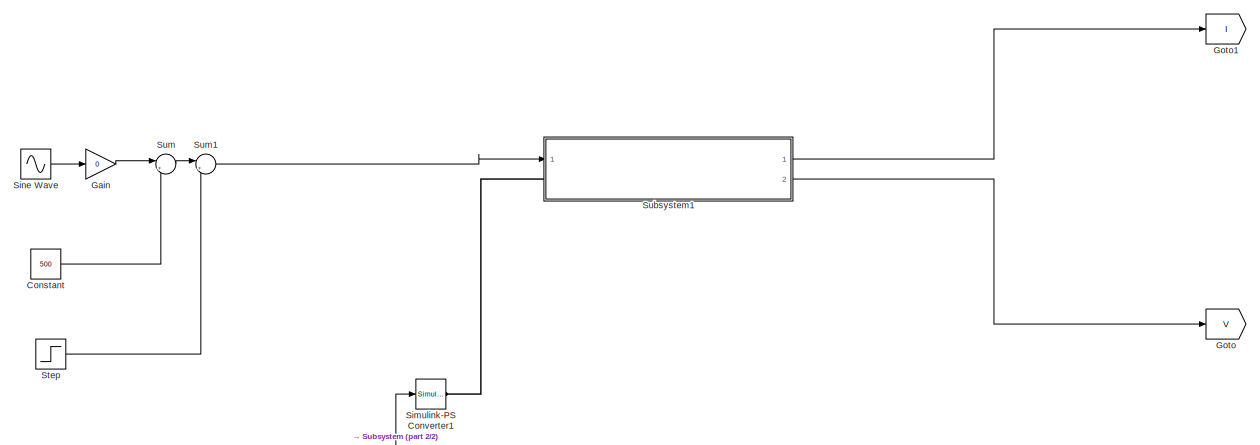
[diagram: root canvas - part 1/2, top center region]
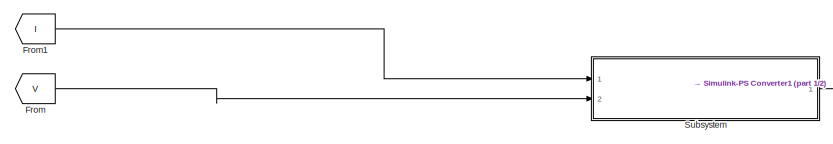
[diagram: root canvas - part 2/2, bottom left region]
MODEL slx_8e7ab636ee97
KIND model
CONFIG AbsTol = auto
CONFIG EnableMultiTasking = off
CONFIG FixedStep = 0.001
CONFIG MaxStep = auto
CONFIG MinStep = auto
CONFIG RelTol = 1e-3
CONFIG SampleTimeConstraint = Unconstrained
CONFIG Solver = FixedStepAuto
CONFIG SolverName = FixedStepAuto
CONFIG StartTime = 0.0
CONFIG StopTime = 10
BLOCK [Constant] Constant
  Value = 500
BLOCK [From] From
  GotoTag = V
BLOCK [From] From1
  GotoTag = I
BLOCK [Gain] Gain
  Gain = 0
  OutDataTypeStr = Inherit: Inherit via internal rule
  ParamDataTypeStr = Inherit: Inherit via internal rule
  SaturateOnIntegerOverflow = off
BLOCK [Goto] Goto
  GotoTag = V
BLOCK [Goto] Goto1
  GotoTag = I
BLOCK [Reference] Simulink-PS Converter1  REF=nesl_utility/Simulink-PS
Converter
  Ports = [1, 0, 0, 0, 0, 0, 1]
  SourceBlock = nesl_utility/Simulink-PS\nConverter
  SourceProductBaseCode = SS
  SourceProductName = Simscape
  SourceType = Simulink-PS\nConverter
BLOCK [Sin] Sine Wave
  Amplitude = 200
  Bias = 200
  Frequency = 10
  Ports = [0, 1]
  SampleTime = 0
BLOCK [Step] Step
  After = 500
  SampleTime = 0
  Time = 5
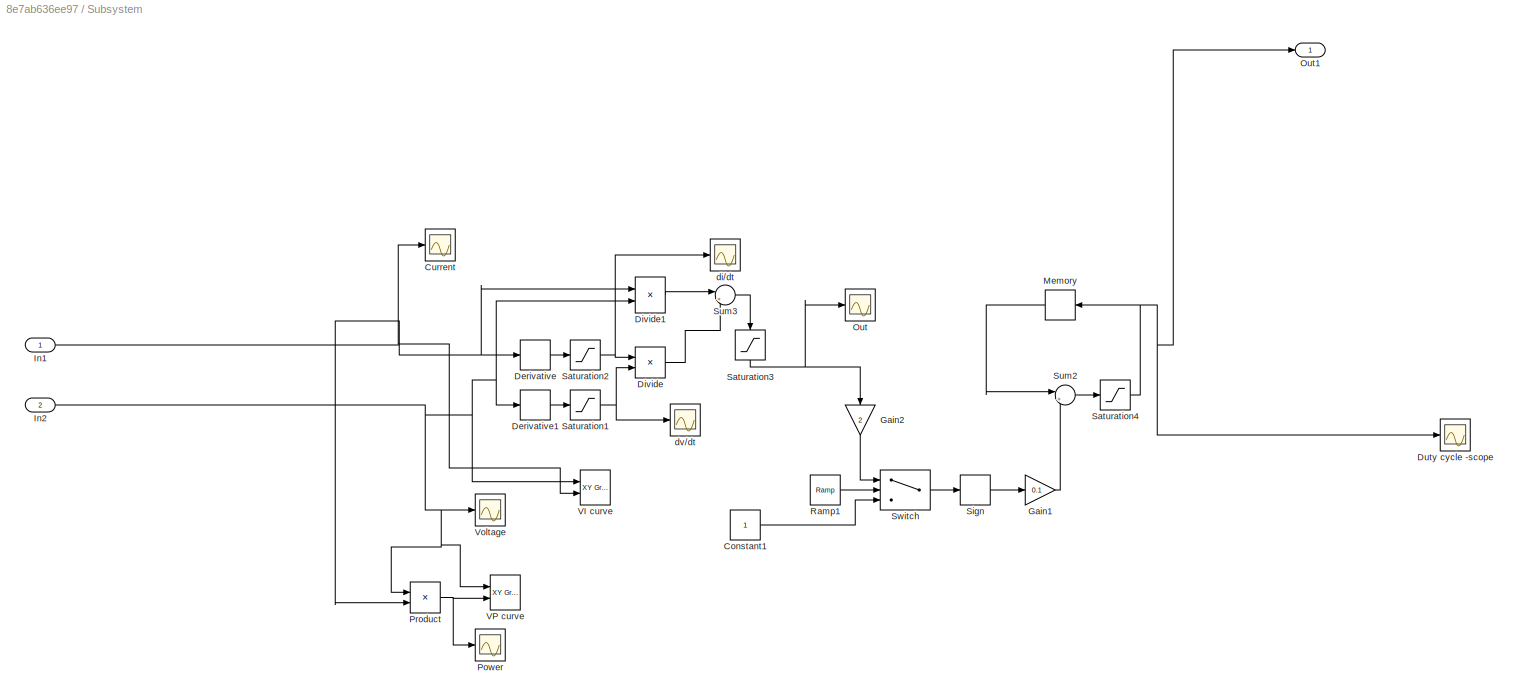
BLOCK [SubSystem] Subsystem
  Ports = [2, 1]
  RequestExecContextInheritance = off
  Variant = off
BLOCK [Constant] Subsystem/Constant1
BLOCK [Scope] Subsystem/Current
  NumInputPorts = 1
  Ports = [1]
  ScopeSpecificationString = Simulink.scopes.TimeScopeBlockCfg('CurrentConfiguration', extmgr.ConfigurationSet(extmgr.Configuration('Core','General UI',true),extmgr.Configuration('Core','Source UI',true),extmgr.Configuration('Sources','WiredSimulink',true,'DataLoggingVariableName','ScopeData1'),extmgr.Configuration('Visuals','Time Domain',true,'SerializedDisplays',{struct('MinYLimReal','2.45414','MaxYLimReal','6.99236','YLabe...<+1429ch>
BLOCK [Derivative] Subsystem/Derivative
  CoefficientInTFapproximation = 300
BLOCK [Derivative] Subsystem/Derivative1
  CoefficientInTFapproximation = 300
BLOCK [Product] Subsystem/Divide
  InputSameDT = off
  Inputs = */
  OutDataTypeStr = Inherit: Inherit via internal rule
  Ports = [2, 1]
  RndMeth = Floor
  SaturateOnIntegerOverflow = off
BLOCK [Product] Subsystem/Divide1
  InputSameDT = off
  Inputs = */
  OutDataTypeStr = Inherit: Inherit via internal rule
  Ports = [2, 1]
  RndMeth = Floor
  SaturateOnIntegerOverflow = off
BLOCK [Scope] Subsystem/Duty cycle -scope
  NumInputPorts = 1
  Ports = [1]
  ScopeSpecificationString = Simulink.scopes.TimeScopeBlockCfg('CurrentConfiguration', extmgr.ConfigurationSet(extmgr.Configuration('Core','General UI',true),extmgr.Configuration('Core','Source UI',true),extmgr.Configuration('Sources','WiredSimulink',true,'DataLoggingVariableName','ScopeData2'),extmgr.Configuration('Visuals','Time Domain',true,'SerializedDisplays',{struct('MinYLimReal','-21.625','MaxYLimReal','224.625','YLabe...<+1465ch>
BLOCK [Gain] Subsystem/Gain1
  Gain = 0.1
  OutDataTypeStr = Inherit: Inherit via internal rule
  ParamDataTypeStr = Inherit: Inherit via internal rule
  SaturateOnIntegerOverflow = off
BLOCK [Gain] Subsystem/Gain2
  Gain = 2
  OutDataTypeStr = Inherit: Inherit via internal rule
  ParamDataTypeStr = Inherit: Inherit via internal rule
  SaturateOnIntegerOverflow = off
BLOCK [Inport] Subsystem/In1
  IconDisplay = Port number
BLOCK [Inport] Subsystem/In2
  IconDisplay = Port number
  Port = 2
BLOCK [Memory] Subsystem/Memory
  X0 = 2
BLOCK [Scope] Subsystem/Out
  NumInputPorts = 1
  Ports = [1]
  ScopeSpecificationString = Simulink.scopes.TimeScopeBlockCfg('CurrentConfiguration', extmgr.ConfigurationSet(extmgr.Configuration('Core','General UI',true),extmgr.Configuration('Core','Source UI',true),extmgr.Configuration('Sources','WiredSimulink',true,'DataLoggingVariableName','ScopeData3'),extmgr.Configuration('Visuals','Time Domain',true,'SerializedDisplays',{struct('MinYLimReal','-754.58072','MaxYLimReal','104.81335','...<+1481ch>
BLOCK [Outport] Subsystem/Out1
  IconDisplay = Port number
BLOCK [Scope] Subsystem/Power
  NumInputPorts = 1
  Ports = [1]
  ScopeSpecificationString = Simulink.scopes.TimeScopeBlockCfg('CurrentConfiguration', extmgr.ConfigurationSet(extmgr.Configuration('Core','General UI',true),extmgr.Configuration('Core','Source UI',true),extmgr.Configuration('Sources','WiredSimulink',true,'DataLoggingVariableName','ScopeData4'),extmgr.Configuration('Visuals','Time Domain',true,'SerializedDisplays',{struct('MinYLimReal','-18807.58753','MaxYLimReal','169268.287...<+1493ch>
BLOCK [Product] Subsystem/Product
  InputSameDT = off
  OutDataTypeStr = Inherit: Inherit via internal rule
  Ports = [2, 1]
  RndMeth = Floor
  SaturateOnIntegerOverflow = off
BLOCK [Reference] Subsystem/Ramp1  REF=simulink/Sources/Ramp
  Ports = [0, 1]
  SourceBlock = simulink/Sources/Ramp
  SourceProductBaseCode = SL
  SourceProductName = Simulink
  SourceType = Ramp
BLOCK [Saturate] Subsystem/Saturation1
  InputPortMap = u0
  LowerLimit = -200
  Ports = [1, 1]
  UpperLimit = 200
BLOCK [Saturate] Subsystem/Saturation2
  InputPortMap = u0
  LowerLimit = -200
  Ports = [1, 1]
  UpperLimit = 200
BLOCK [Saturate] Subsystem/Saturation3
  InputPortMap = u0
  LowerLimit = -200
  Ports = [1, 1]
  UpperLimit = 200
BLOCK [Saturate] Subsystem/Saturation4
  InputPortMap = u0
  LowerLimit = 0
  Ports = [1, 1]
  UpperLimit = 200
BLOCK [Signum] Subsystem/Sign
BLOCK [Sum] Subsystem/Sum2
  IconShape = round
  InputSameDT = off
  Inputs = |++
  OutDataTypeStr = Inherit: Inherit via internal rule
  Ports = [2, 1]
  SaturateOnIntegerOverflow = off
BLOCK [Sum] Subsystem/Sum3
  IconShape = round
  InputSameDT = off
  Inputs = |++
  OutDataTypeStr = Inherit: Inherit via internal rule
  Ports = [2, 1]
  SaturateOnIntegerOverflow = off
BLOCK [Switch] Subsystem/Switch
  Criteria = u2 > Threshold
  InputSameDT = off
  SaturateOnIntegerOverflow = off
  Threshold = 1
BLOCK [Reference] Subsystem/VI curve  REF=simulink/Sinks/XY Graph
  Ports = [2]
  SourceBlock = simulink/Sinks/XY Graph
  SourceProductBaseCode = SL
  SourceProductName = Simulink
  SourceType = XY scope.
BLOCK [Reference] Subsystem/VP curve  REF=simulink/Sinks/XY Graph
  Ports = [2]
  SourceBlock = simulink/Sinks/XY Graph
  SourceProductBaseCode = SL
  SourceProductName = Simulink
  SourceType = XY scope.
BLOCK [Scope] Subsystem/Voltage
  NumInputPorts = 1
  Ports = [1]
  ScopeSpecificationString = Simulink.scopes.TimeScopeBlockCfg('CurrentConfiguration', extmgr.ConfigurationSet(extmgr.Configuration('Core','General UI',true),extmgr.Configuration('Core','Source UI',true),extmgr.Configuration('Sources','WiredSimulink',true,'DataLoggingVariableName','ScopeData5'),extmgr.Configuration('Visuals','Time Domain',true,'SerializedDisplays',{struct('MinYLimReal','-10.17481','MaxYLimReal','91.57333','YL...<+1463ch>
BLOCK [Scope] Subsystem/di//dt
  NumInputPorts = 1
  Ports = [1]
  ScopeSpecificationString = Simulink.scopes.TimeScopeBlockCfg('CurrentConfiguration', extmgr.ConfigurationSet(extmgr.Configuration('Core','General UI',true),extmgr.Configuration('Core','Source UI',true),extmgr.Configuration('Sources','WiredSimulink',true,'DataLoggingVariableName','ScopeData6'),extmgr.Configuration('Visuals','Time Domain',true),extmgr.Configuration('Tools','Plot Navigation',true),extmgr.Configuration('Tools',...<+40ch>
BLOCK [Scope] Subsystem/dv//dt
  NumInputPorts = 1
  Ports = [1]
  ScopeSpecificationString = Simulink.scopes.TimeScopeBlockCfg('CurrentConfiguration', extmgr.ConfigurationSet(extmgr.Configuration('Core','General UI',true),extmgr.Configuration('Core','Source UI',true),extmgr.Configuration('Sources','WiredSimulink',true,'DataLoggingVariableName','ScopeData7'),extmgr.Configuration('Visuals','Time Domain',true,'SerializedDisplays',{struct('MinYLimReal','-297.70282','MaxYLimReal','68.60075','Y...<+1401ch>
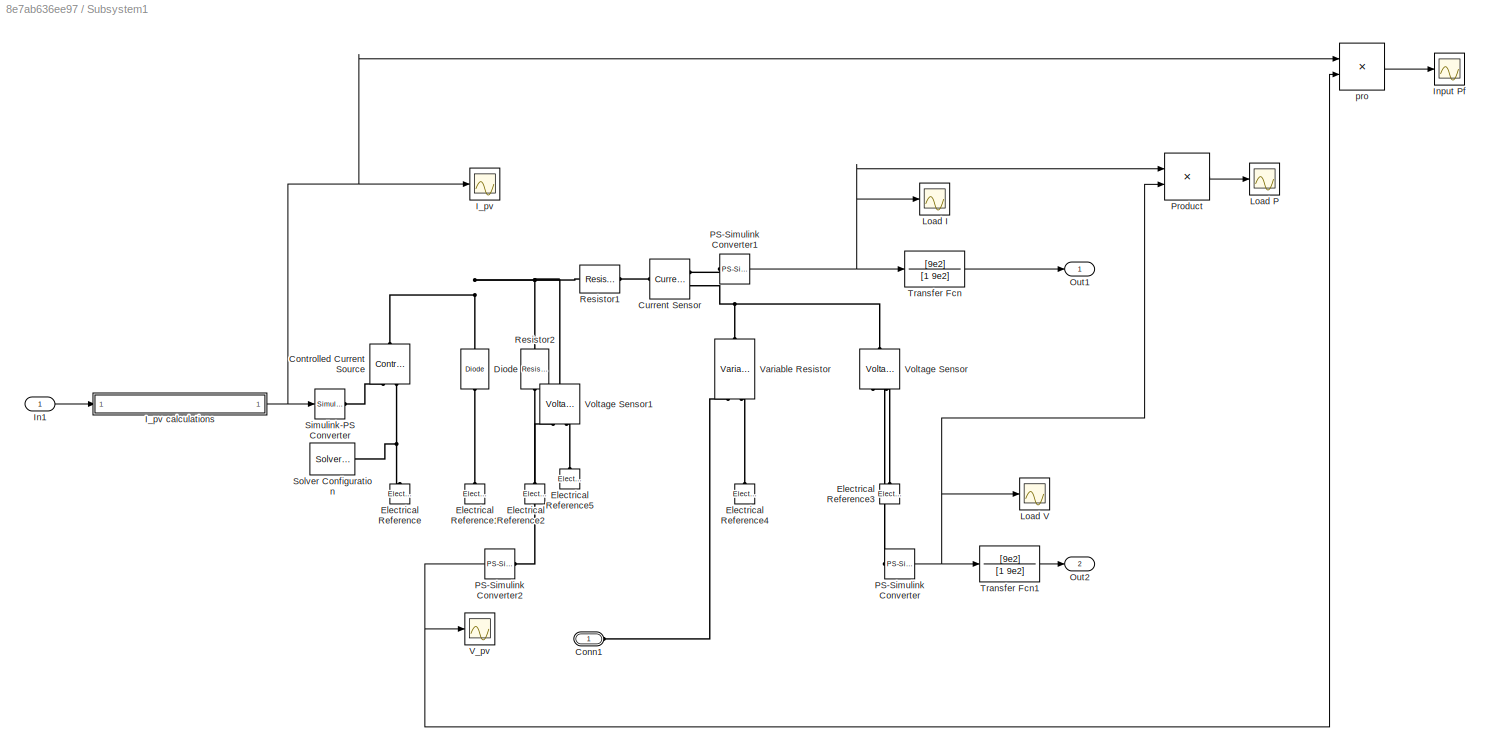
BLOCK [SubSystem] Subsystem1
  Ports = [1, 2, 0, 0, 0, 1]
  RequestExecContextInheritance = off
  Variant = off
BLOCK [PMIOPort] Subsystem1/Conn1
  Port = 1
  Side = Left
BLOCK [Reference] Subsystem1/Controlled Current Source  REF=fl_lib/Electrical/Electrical Sources/Controlled Current
Source
  Ports = [0, 0, 0, 0, 0, 1, 2]
  SourceBlock = fl_lib/Electrical/Electrical Sources/Controlled Current\nSource
  SourceProductBaseCode = SS
  SourceProductName = Simscape
  SourceType = Controlled Current\nSource
BLOCK [Reference] Subsystem1/Current Sensor  REF=fl_lib/Electrical/Electrical Sensors/Current Sensor
  Ports = [0, 0, 0, 0, 0, 1, 2]
  SourceBlock = fl_lib/Electrical/Electrical Sensors/Current Sensor
  SourceProductBaseCode = SS
  SourceProductName = Simscape
  SourceType = Current Sensor
BLOCK [Reference] Subsystem1/Diode  REF=elec_lib/Semiconductor
Devices/Diode
  Ports = [0, 0, 0, 0, 0, 1, 1]
  SourceBlock = elec_lib/Semiconductor\nDevices/Diode
  SourceProductBaseCode = SN
  SourceProductName = Simscape Electronics
  SourceType = Diode
BLOCK [Reference] Subsystem1/Electrical Reference  REF=fl_lib/Electrical/Electrical Elements/Electrical Reference
  Ports = [0, 0, 0, 0, 0, 1]
  SourceBlock = fl_lib/Electrical/Electrical Elements/Electrical Reference
  SourceProductBaseCode = SS
  SourceProductName = Simscape
  SourceType = Electrical Reference
BLOCK [Reference] Subsystem1/Electrical Reference1  REF=fl_lib/Electrical/Electrical Elements/Electrical Reference
  Ports = [0, 0, 0, 0, 0, 1]
  SourceBlock = fl_lib/Electrical/Electrical Elements/Electrical Reference
  SourceProductBaseCode = SS
  SourceProductName = Simscape
  SourceType = Electrical Reference
BLOCK [Reference] Subsystem1/Electrical Reference2  REF=fl_lib/Electrical/Electrical Elements/Electrical Reference
  Ports = [0, 0, 0, 0, 0, 1]
  SourceBlock = fl_lib/Electrical/Electrical Elements/Electrical Reference
  SourceProductBaseCode = SS
  SourceProductName = Simscape
  SourceType = Electrical Reference
BLOCK [Reference] Subsystem1/Electrical Reference3  REF=fl_lib/Electrical/Electrical Elements/Electrical Reference
  Ports = [0, 0, 0, 0, 0, 1]
  SourceBlock = fl_lib/Electrical/Electrical Elements/Electrical Reference
  SourceProductBaseCode = SS
  SourceProductName = Simscape
  SourceType = Electrical Reference
BLOCK [Reference] Subsystem1/Electrical Reference4  REF=fl_lib/Electrical/Electrical Elements/Electrical Reference
  Ports = [0, 0, 0, 0, 0, 1]
  SourceBlock = fl_lib/Electrical/Electrical Elements/Electrical Reference
  SourceProductBaseCode = SS
  SourceProductName = Simscape
  SourceType = Electrical Reference
BLOCK [Reference] Subsystem1/Electrical Reference5  REF=fl_lib/Electrical/Electrical Elements/Electrical Reference
  Ports = [0, 0, 0, 0, 0, 1]
  SourceBlock = fl_lib/Electrical/Electrical Elements/Electrical Reference
  SourceProductBaseCode = SS
  SourceProductName = Simscape
  SourceType = Electrical Reference
BLOCK [Scope] Subsystem1/I_pv
  NumInputPorts = 1
  Ports = [1]
  ScopeSpecificationString = Simulink.scopes.TimeScopeBlockCfg('CurrentConfiguration', extmgr.ConfigurationSet(extmgr.Configuration('Core','General UI',true),extmgr.Configuration('Core','Source UI',true),extmgr.Configuration('Sources','WiredSimulink',true,'DataLoggingVariableName','ScopeData9'),extmgr.Configuration('Visuals','Time Domain',true,'SerializedDisplays',{struct('MinYLimReal','2.86672','MaxYLimReal','6.96203','YLabe...<+1374ch>
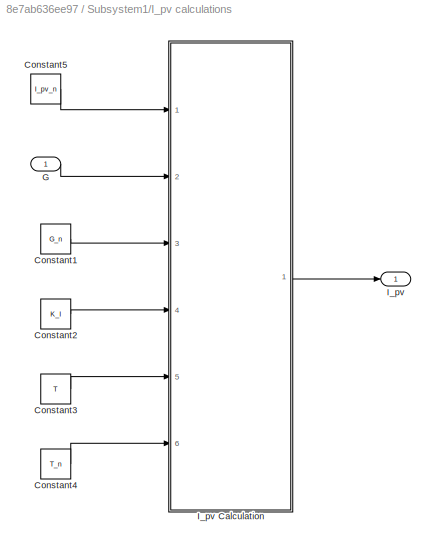
BLOCK [SubSystem] Subsystem1/I_pv calculations
  Ports = [1, 1]
  RequestExecContextInheritance = off
  Variant = off
BLOCK [Constant] Subsystem1/I_pv calculations/Constant1
  Value = G_n
BLOCK [Constant] Subsystem1/I_pv calculations/Constant2
  Value = K_I
BLOCK [Constant] Subsystem1/I_pv calculations/Constant3
  Value = T
BLOCK [Constant] Subsystem1/I_pv calculations/Constant4
  Value = T_n
BLOCK [Constant] Subsystem1/I_pv calculations/Constant5
  Value = I_pv_n
BLOCK [Inport] Subsystem1/I_pv calculations/G
  IconDisplay = Port number
BLOCK [Outport] Subsystem1/I_pv calculations/I_pv
  IconDisplay = Port number
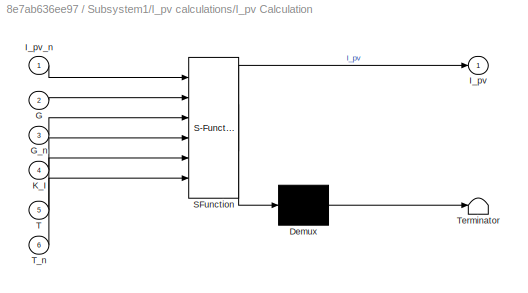
BLOCK [SubSystem] Subsystem1/I_pv calculations/I_pv Calculation
  ErrorFcn = Stateflow.Translate.translate
  PermitHierarchicalResolution = ExplicitOnly
  Ports = [6, 1]
  RequestExecContextInheritance = off
  SFBlockType = MATLAB Function
  TreatAsAtomicUnit = on
  Variant = off
BLOCK [Demux] Subsystem1/I_pv calculations/I_pv Calculation/ Demux 
  Outputs = 1
  Ports = [1, 1]
BLOCK [S-Function] Subsystem1/I_pv calculations/I_pv Calculation/ SFunction 
  EnableBusSupport = on
  FunctionName = sf_sfun
  PortCounts = [6 2]
  Ports = [6, 2]
  SFcnIsStateOwnerBlock = off
  SFunctionDeploymentMode = off
  Tag = Stateflow S-Function GSK_PVModel_07 1
BLOCK [Terminator] Subsystem1/I_pv calculations/I_pv Calculation/ Terminator 
BLOCK [Inport] Subsystem1/I_pv calculations/I_pv Calculation/G
  IconDisplay = Port number
  Port = 2
BLOCK [Inport] Subsystem1/I_pv calculations/I_pv Calculation/G_n
  IconDisplay = Port number
  Port = 3
BLOCK [Outport] Subsystem1/I_pv calculations/I_pv Calculation/I_pv
  IconDisplay = Port number
BLOCK [Inport] Subsystem1/I_pv calculations/I_pv Calculation/I_pv_n
  IconDisplay = Port number
BLOCK [Inport] Subsystem1/I_pv calculations/I_pv Calculation/K_I
  IconDisplay = Port number
  Port = 4
BLOCK [Inport] Subsystem1/I_pv calculations/I_pv Calculation/T
  IconDisplay = Port number
  Port = 5
BLOCK [Inport] Subsystem1/I_pv calculations/I_pv Calculation/T_n
  IconDisplay = Port number
  Port = 6
BLOCK [Inport] Subsystem1/In1
  IconDisplay = Port number
BLOCK [Scope] Subsystem1/Input Pf
  NumInputPorts = 1
  Ports = [1]
  ScopeSpecificationString = Simulink.scopes.TimeScopeBlockCfg('CurrentConfiguration', extmgr.ConfigurationSet(extmgr.Configuration('Core','General UI',true),extmgr.Configuration('Core','Source UI',true),extmgr.Configuration('Sources','WiredSimulink',true,'DataLoggingVariableName','ScopeData12'),extmgr.Configuration('Visuals','Time Domain',true,'SerializedDisplays',{struct('MinYLimReal','-11879.0653','MaxYLimReal','2322.9369'...<+1440ch>
BLOCK [Scope] Subsystem1/Load I
  NumInputPorts = 1
  Ports = [1]
  ScopeSpecificationString = Simulink.scopes.TimeScopeBlockCfg('CurrentConfiguration', extmgr.ConfigurationSet(extmgr.Configuration('Core','General UI',true),extmgr.Configuration('Core','Source UI',true),extmgr.Configuration('Sources','WiredSimulink',true),extmgr.Configuration('Visuals','Time Domain',true),extmgr.Configuration('Tools','Plot Navigation',true),extmgr.Configuration('Tools','Measurements',true)),'Version','2017a'...<+1ch>
BLOCK [Scope] Subsystem1/Load P
  NumInputPorts = 1
  Ports = [1]
  ScopeSpecificationString = Simulink.scopes.TimeScopeBlockCfg('CurrentConfiguration', extmgr.ConfigurationSet(extmgr.Configuration('Core','General UI',true),extmgr.Configuration('Core','Source UI',true),extmgr.Configuration('Sources','WiredSimulink',true,'DataLoggingVariableName','ScopeData11'),extmgr.Configuration('Visuals','Time Domain',true,'SerializedDisplays',{struct('MinYLimReal','-14680.98431','MaxYLimReal','132344.27...<+1453ch>
BLOCK [Scope] Subsystem1/Load V
  NumInputPorts = 1
  Ports = [1]
  ScopeSpecificationString = Simulink.scopes.TimeScopeBlockCfg('CurrentConfiguration', extmgr.ConfigurationSet(extmgr.Configuration('Core','General UI',true),extmgr.Configuration('Core','Source UI',true),extmgr.Configuration('Sources','WiredSimulink',true,'DataLoggingVariableName','ScopeData8'),extmgr.Configuration('Visuals','Time Domain',true),extmgr.Configuration('Tools','Plot Navigation',true),extmgr.Configuration('Tools',...<+40ch>
BLOCK [Outport] Subsystem1/Out1
  IconDisplay = Port number
BLOCK [Outport] Subsystem1/Out2
  IconDisplay = Port number
  Port = 2
BLOCK [Reference] Subsystem1/PS-Simulink Converter  REF=nesl_utility/PS-Simulink
Converter
  Ports = [0, 1, 0, 0, 0, 1]
  SourceBlock = nesl_utility/PS-Simulink\nConverter
  SourceProductBaseCode = SS
  SourceProductName = Simscape
  SourceType = PS-Simulink\nConverter
BLOCK [Reference] Subsystem1/PS-Simulink Converter1  REF=nesl_utility/PS-Simulink
Converter
  Ports = [0, 1, 0, 0, 0, 1]
  SourceBlock = nesl_utility/PS-Simulink\nConverter
  SourceProductBaseCode = SS
  SourceProductName = Simscape
  SourceType = PS-Simulink\nConverter
BLOCK [Reference] Subsystem1/PS-Simulink Converter2  REF=nesl_utility/PS-Simulink
Converter
  Ports = [0, 1, 0, 0, 0, 1]
  SourceBlock = nesl_utility/PS-Simulink\nConverter
  SourceProductBaseCode = SS
  SourceProductName = Simscape
  SourceType = PS-Simulink\nConverter
BLOCK [Product] Subsystem1/Product
  InputSameDT = off
  OutDataTypeStr = Inherit: Inherit via internal rule
  Ports = [2, 1]
  RndMeth = Floor
  SaturateOnIntegerOverflow = off
BLOCK [Reference] Subsystem1/Resistor1  REF=fl_lib/Electrical/Electrical Elements/Resistor
  Ports = [0, 0, 0, 0, 0, 1, 1]
  SourceBlock = fl_lib/Electrical/Electrical Elements/Resistor
  SourceProductBaseCode = SS
  SourceProductName = Simscape
  SourceType = Resistor
BLOCK [Reference] Subsystem1/Resistor2  REF=fl_lib/Electrical/Electrical Elements/Resistor
  Ports = [0, 0, 0, 0, 0, 1, 1]
  SourceBlock = fl_lib/Electrical/Electrical Elements/Resistor
  SourceProductBaseCode = SS
  SourceProductName = Simscape
  SourceType = Resistor
BLOCK [Reference] Subsystem1/Simulink-PS Converter  REF=nesl_utility/Simulink-PS
Converter
  Ports = [1, 0, 0, 0, 0, 0, 1]
  SourceBlock = nesl_utility/Simulink-PS\nConverter
  SourceProductBaseCode = SS
  SourceProductName = Simscape
  SourceType = Simulink-PS\nConverter
BLOCK [Reference] Subsystem1/Solver Configuration  REF=nesl_utility/Solver
Configuration
  Ports = [0, 0, 0, 0, 0, 0, 1]
  SourceBlock = nesl_utility/Solver\nConfiguration
  SourceProductBaseCode = SS
  SourceProductName = Simscape
  SourceType = Solver\nConfiguration
BLOCK [TransferFcn] Subsystem1/Transfer Fcn
  Denominator = [1 9e2]
  Numerator = [9e2]
BLOCK [TransferFcn] Subsystem1/Transfer Fcn1
  Denominator = [1 9e2]
  Numerator = [9e2]
BLOCK [Scope] Subsystem1/V_pv
  NumInputPorts = 1
  Ports = [1]
  ScopeSpecificationString = Simulink.scopes.TimeScopeBlockCfg('CurrentConfiguration', extmgr.ConfigurationSet(extmgr.Configuration('Core','General UI',true),extmgr.Configuration('Core','Source UI',true),extmgr.Configuration('Sources','WiredSimulink',true,'DataLoggingVariableName','ScopeData10'),extmgr.Configuration('Visuals','Time Domain',true),extmgr.Configuration('Tools','Plot Navigation',true),extmgr.Configuration('Tools'...<+59ch>
BLOCK [Reference] Subsystem1/Variable Resistor  REF=fl_lib/Electrical/Electrical Elements/Variable Resistor
  Ports = [0, 0, 0, 0, 0, 2, 1]
  SourceBlock = fl_lib/Electrical/Electrical Elements/Variable Resistor
  SourceProductBaseCode = SS
  SourceProductName = Simscape
  SourceType = Variable Resistor
BLOCK [Reference] Subsystem1/Voltage Sensor  REF=fl_lib/Electrical/Electrical Sensors/Voltage Sensor
  Ports = [0, 0, 0, 0, 0, 1, 2]
  SourceBlock = fl_lib/Electrical/Electrical Sensors/Voltage Sensor
  SourceProductBaseCode = SS
  SourceProductName = Simscape
  SourceType = Voltage Sensor
BLOCK [Reference] Subsystem1/Voltage Sensor1  REF=fl_lib/Electrical/Electrical Sensors/Voltage Sensor
  Ports = [0, 0, 0, 0, 0, 1, 2]
  SourceBlock = fl_lib/Electrical/Electrical Sensors/Voltage Sensor
  SourceProductBaseCode = SS
  SourceProductName = Simscape
  SourceType = Voltage Sensor
BLOCK [Product] Subsystem1/pro
  InputSameDT = off
  OutDataTypeStr = Inherit: Inherit via internal rule
  Ports = [2, 1]
  RndMeth = Floor
  SaturateOnIntegerOverflow = off
BLOCK [Sum] Sum
  IconShape = round
  InputSameDT = off
  Inputs = |++
  OutDataTypeStr = Inherit: Inherit via internal rule
  Ports = [2, 1]
  SaturateOnIntegerOverflow = off
BLOCK [Sum] Sum1
  IconShape = round
  InputSameDT = off
  Inputs = |++
  OutDataTypeStr = Inherit: Inherit via internal rule
  Ports = [2, 1]
  SaturateOnIntegerOverflow = off
LINE Constant:1 -> Sum:2
LINE From1:1 -> Subsystem:1
LINE From:1 -> Subsystem:2
LINE Gain:1 -> Sum:1
LINE Sine Wave:1 -> Gain:1
LINE Step:1 -> Sum1:2
LINE Subsystem/Constant1:1 -> Subsystem/Switch:3
LINE Subsystem/Derivative1:1 -> Subsystem/Saturation1:1
LINE Subsystem/Derivative:1 -> Subsystem/Saturation2:1
LINE Subsystem/Divide1:1 -> Subsystem/Sum3:1
LINE Subsystem/Divide:1 -> Subsystem/Sum3:2
LINE Subsystem/Gain1:1 -> Subsystem/Sum2:2
LINE Subsystem/Gain2:1 -> Subsystem/Switch:1
NET Subsystem/In1:1 -> Subsystem/Current:1, Subsystem/Derivative:1, Subsystem/Divide1:1, Subsystem/Product:2, Subsystem/VI curve:2
NET Subsystem/In2:1 -> Subsystem/Derivative1:1, Subsystem/Divide1:2, Subsystem/Product:1, Subsystem/VI curve:1, Subsystem/VP curve:1, Subsystem/Voltage:1
LINE Subsystem/Memory:1 -> Subsystem/Sum2:1
NET Subsystem/Product:1 -> Subsystem/Power:1, Subsystem/VP curve:2
LINE Subsystem/Ramp1:1 -> Subsystem/Switch:2
NET Subsystem/Saturation1:1 -> Subsystem/Divide:2, Subsystem/dv//dt:1
NET Subsystem/Saturation2:1 -> Subsystem/Divide:1, Subsystem/di//dt:1
NET Subsystem/Saturation3:1 -> Subsystem/Gain2:1, Subsystem/Out:1
NET Subsystem/Saturation4:1 -> Subsystem/Duty cycle -scope:1, Subsystem/Memory:1, Subsystem/Out1:1
LINE Subsystem/Sign:1 -> Subsystem/Gain1:1
LINE Subsystem/Sum2:1 -> Subsystem/Saturation4:1
LINE Subsystem/Sum3:1 -> Subsystem/Saturation3:1
LINE Subsystem/Switch:1 -> Subsystem/Sign:1
LINE Subsystem1/I_pv calculations/Constant1:1 -> Subsystem1/I_pv calculations/I_pv Calculation:3
LINE Subsystem1/I_pv calculations/Constant2:1 -> Subsystem1/I_pv calculations/I_pv Calculation:4
LINE Subsystem1/I_pv calculations/Constant3:1 -> Subsystem1/I_pv calculations/I_pv Calculation:5
LINE Subsystem1/I_pv calculations/Constant4:1 -> Subsystem1/I_pv calculations/I_pv Calculation:6
LINE Subsystem1/I_pv calculations/Constant5:1 -> Subsystem1/I_pv calculations/I_pv Calculation:1
LINE Subsystem1/I_pv calculations/G:1 -> Subsystem1/I_pv calculations/I_pv Calculation:2
LINE Subsystem1/I_pv calculations/I_pv Calculation:1 -> Subsystem1/I_pv calculations/I_pv:1
NET Subsystem1/I_pv calculations:1 -> Subsystem1/I_pv:1, Subsystem1/Simulink-PS Converter:1, Subsystem1/pro:1
LINE Subsystem1/In1:1 -> Subsystem1/I_pv calculations:1
NET Subsystem1/PS-Simulink Converter1:1 -> Subsystem1/Load I:1, Subsystem1/Product:1, Subsystem1/Transfer Fcn:1
NET Subsystem1/PS-Simulink Converter2:1 -> Subsystem1/V_pv:1, Subsystem1/pro:2
NET Subsystem1/PS-Simulink Converter:1 -> Subsystem1/Load V:1, Subsystem1/Product:2, Subsystem1/Transfer Fcn1:1
LINE Subsystem1/Product:1 -> Subsystem1/Load P:1
LINE Subsystem1/Transfer Fcn1:1 -> Subsystem1/Out2:1
LINE Subsystem1/Transfer Fcn:1 -> Subsystem1/Out1:1
LINE Subsystem1/pro:1 -> Subsystem1/Input Pf:1
LINE Subsystem1:1 -> Goto1:1
LINE Subsystem1:2 -> Goto:1
LINE Subsystem:1 -> Simulink-PS Converter1:1
LINE Sum1:1 -> Subsystem1:1
LINE Sum:1 -> Sum1:1
PLINE Simulink-PS Converter1:RConn1 -- Subsystem1:LConn1
PLINE Subsystem1/Conn1:RConn1 -- Subsystem1/Variable Resistor:LConn1
PNET net1: Subsystem1/Controlled Current Source:LConn1 -- Subsystem1/Diode:LConn1 -- Subsystem1/Resistor1:LConn1 -- Subsystem1/Resistor2:LConn1 -- Subsystem1/Voltage Sensor1:LConn1
PLINE Subsystem1/Controlled Current Source:RConn1 -- Subsystem1/Simulink-PS Converter:RConn1
PNET net2: Subsystem1/Controlled Current Source:RConn2 -- Subsystem1/Electrical Reference:LConn1 -- Subsystem1/Solver Configuration:RConn1
PLINE Subsystem1/Current Sensor:LConn1 -- Subsystem1/Resistor1:RConn1
PLINE Subsystem1/Current Sensor:RConn1 -- Subsystem1/PS-Simulink Converter1:LConn1
PNET net3: Subsystem1/Current Sensor:RConn2 -- Subsystem1/Variable Resistor:RConn1 -- Subsystem1/Voltage Sensor:LConn1
PLINE Subsystem1/Diode:RConn1 -- Subsystem1/Electrical Reference1:LConn1
PLINE Subsystem1/Electrical Reference2:LConn1 -- Subsystem1/Resistor2:RConn1
PLINE Subsystem1/Electrical Reference3:LConn1 -- Subsystem1/Voltage Sensor:RConn2
PLINE Subsystem1/Electrical Reference4:LConn1 -- Subsystem1/Variable Resistor:LConn2
PLINE Subsystem1/Electrical Reference5:LConn1 -- Subsystem1/Voltage Sensor1:RConn2
PLINE Subsystem1/PS-Simulink Converter2:LConn1 -- Subsystem1/Voltage Sensor1:RConn1
PLINE Subsystem1/PS-Simulink Converter:LConn1 -- Subsystem1/Voltage Sensor:RConn1
note: NET lines group one-source signal fan-out (src -> all destinations, sorted); 1:1 wires keep LINE; PNET lines group multi-terminal physical nets as a canonical sorted terminal list (undirected conserving connections); 2-terminal nets keep the pairwise PLINE form
CHART Subsystem1/I_pv calculations/I_pv Calculation states=1 transitions=1
  STATE_LABEL 'eML_blk_kernel()'
  STATE_LABEL 'SCRIPT:\nfunction I_pv = fcn(I_pv_n, G, G_n, K_I, T, T_n )\n%#codegen\nDelta_T = (T - T_n);\nI_pv = (I_pv_n + K_I*Delta_T)*G/G_n;'
